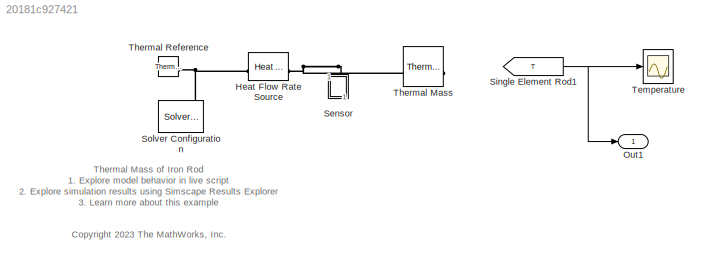
MODEL slx_20181c927421
KIND model
CONFIG AbsTol = 1e-3
CONFIG EnableMultiTasking = on
CONFIG FixedStep = auto
CONFIG MaxStep = 100
CONFIG MinStep = auto
CONFIG PreLoadFcn = if ~exist('Q_case_3', 'var') Q_case_3= 18;  end % [W]\nif ~exist('L', 'var')        L= 0.2;        end % [m]\nif ~exist('D', 'var')        D= 0.025;      end % [m]\nif ~exist('A', 'var')        A= pi*D^2/4;   end % [m^2]\nif ~exist('m', 'var')        m= 7800*A*L;   end % [kg]\nif ~exist('c', 'var')        c= 447;        end % [J/kg/K]\n\n
CONFIG RelTol = 1e-3
CONFIG SampleTimeConstraint = Unconstrained
CONFIG SolverName = VariableStepAuto
CONFIG StartTime = 0.0
CONFIG StopTime = 60
BLOCK [Reference] Heat Flow Rate Source  REF=fl_lib/Thermal/Thermal Sources/Heat Flow Rate
Source
  SourceBlock = fl_lib/Thermal/Thermal Sources/Heat Flow Rate\nSource
  SourceType = Heat Flow Rate\nSource
BLOCK [Outport] Out1
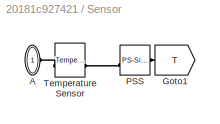
BLOCK [SubSystem] Sensor
BLOCK [PMIOPort] Sensor/A
  Side = Left
BLOCK [Goto] Sensor/Goto1
  GotoTag = T
  Tag = CustomStyle
  TagVisibility = global
BLOCK [Reference] Sensor/PSS  REF=nesl_utility/PS-Simulink
Converter
  SourceBlock = nesl_utility/PS-Simulink\nConverter
  SourceType = PS-Simulink\nConverter
BLOCK [Reference] Sensor/Temperature Sensor  REF=fl_lib/Thermal/Thermal Sensors/Temperature Sensor
  SourceBlock = fl_lib/Thermal/Thermal Sensors/Temperature Sensor
  SourceType = Temperature Sensor
BLOCK [From] Single Element Rod1
  GotoTag = T
  Tag = CustomStyle
  TagVisibility = global
BLOCK [Reference] Solver Configuration  REF=nesl_utility/Solver
Configuration
  SourceBlock = nesl_utility/Solver\nConfiguration
  SourceType = Solver\nConfiguration
BLOCK [Scope] Temperature
  Floating = off
  NumInputPorts = 1
  ScopeSpecificationString = Simulink.scopes.TimeScopeBlockCfg('CurrentConfiguration', extmgr.ConfigurationSet(extmgr.Configuration('Core','General UI',true,'FigureColor',[0.501960784313725 0.501960784313725 0.501960784313725]),extmgr.Configuration('Core','Source UI',true),extmgr.Configuration('Sources','WiredSimulink',true,'DataLoggingSaveFormat','StructureWithTime','DataLoggingLimitDataPoints',true,'DataLoggingDecimation','...<+2807ch>
  Tag = PublishScope
BLOCK [Reference] Thermal Mass  REF=fl_lib/Thermal/Thermal Elements/Thermal Mass
  SourceBlock = fl_lib/Thermal/Thermal Elements/Thermal Mass
  SourceType = Thermal Mass
BLOCK [Reference] Thermal Reference  REF=fl_lib/Thermal/Thermal Elements/Thermal Reference
  NameLocation = top
  SourceBlock = fl_lib/Thermal/Thermal Elements/Thermal Reference
  SourceType = Thermal Reference
ANNOTATION (root): 1. Explore model behavior in live script 2. Explore simulation results using Simscape Results Explorer 3. Learn more about this example
ANNOTATION (root): <copyright redacted>
ANNOTATION (root): Thermal Mass of Iron Rod
LINE Sensor/PSS:1 -> Sensor/Goto1:1
NET Single Element Rod1:1 -> Out1:1, Temperature:1
PNET net1: Heat Flow Rate Source:LConn1 -- Sensor:LConn1 -- Thermal Mass:LConn1
PNET net2: Heat Flow Rate Source:RConn1 -- Solver Configuration:RConn1 -- Thermal Reference:LConn1
PLINE Sensor/A:RConn1 -- Sensor/Temperature Sensor:LConn1
PLINE Sensor/PSS:LConn1 -- Sensor/Temperature Sensor:RConn1
note: NET lines group one-source signal fan-out (src -> all destinations, sorted); 1:1 wires keep LINE; PNET lines group multi-terminal physical nets as a canonical sorted terminal list (undirected conserving connections); 2-terminal nets keep the pairwise PLINE form
